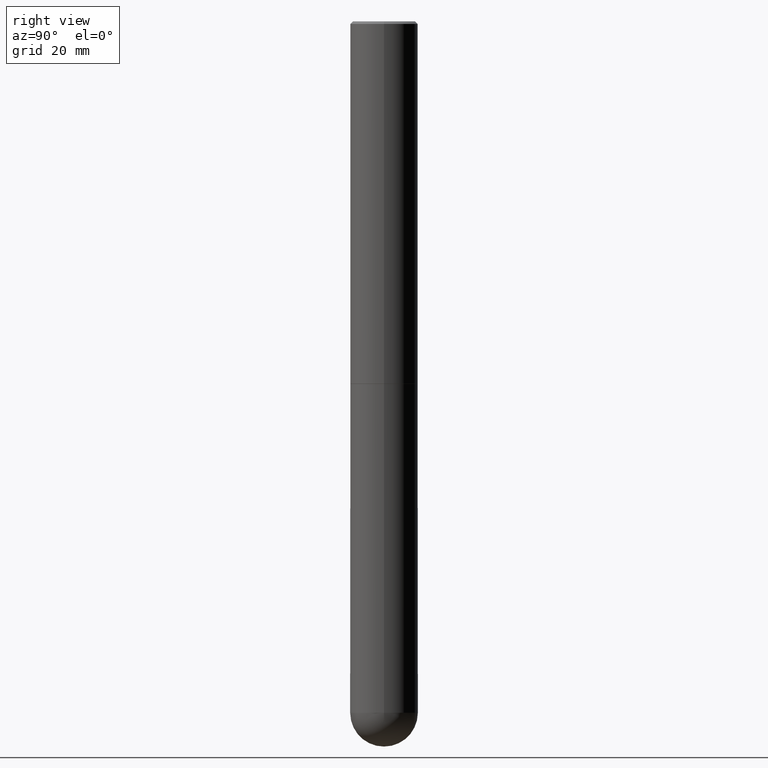
[diagram: clean part render]
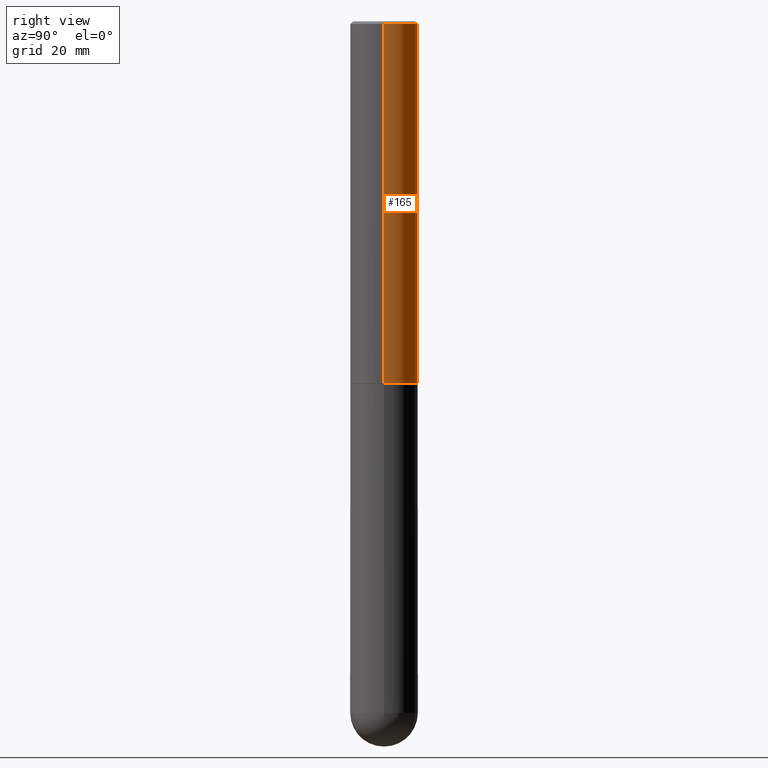
[diagram: same view with one face highlighted and labeled with its STEP entity id]
A machine part, right view. The second image highlights one B-rep face of the part: STEP entity #165.
In plain terms, the highlighted cylindrical surface (edge-blend (fillet) strip) has radius 7.0002 mm, axis along (-0, 0, 1).
Its self-contained STEP definition (entity closure, byte-faithful):
#9 = EDGE_CURVE ( 'NONE', #295, #367, #131, .T. ) ;
#15 = CIRCLE ( 'NONE', #119, 0.2756000000000000116 ) ;
#23 = VECTOR ( 'NONE', #358, 39.37007874015748143 ) ;
#38 = DIRECTION ( 'NONE',  ( -2.445468806185136877E-29, 3.491481338843145188E-15, 1.000000000000000000 ) ) ;
#65 = AXIS2_PLACEMENT_3D ( 'NONE', #101, #233, #357 ) ;
#67 = EDGE_CURVE ( 'NONE', #376, #295, #145, .T. ) ;
#69 = ORIENTED_EDGE ( 'NONE', *, *, #9, .T. ) ;
#72 = CARTESIAN_POINT ( 'NONE',  ( -0.2756000000000002337, 1.958255779754837773E-15, -1.355658510874253128E-29 ) ) ;
#100 = DIRECTION ( 'NONE',  ( -2.445468806185136597E-29, 3.491481338843145583E-15, 1.000000000000000000 ) ) ;
#101 = CARTESIAN_POINT ( 'NONE',  ( 7.218290275216666916E-29, -1.030580546786331359E-14, -2.951700000000000212 ) ) ;
#109 = ORIENTED_EDGE ( 'NONE', *, *, #198, .F. ) ;
#114 = CARTESIAN_POINT ( 'NONE',  ( 4.890937612370288923E-31, -6.982962677686312563E-17, -0.02000000000000006287 ) ) ;
#119 = AXIS2_PLACEMENT_3D ( 'NONE', #114, #276, #373 ) ;
#122 = FACE_OUTER_BOUND ( 'NONE', #349, .T. ) ;
#124 = CARTESIAN_POINT ( 'NONE',  ( -0.2756000000000000116, 1.854674887193472050E-15, -0.02000000000000006287 ) ) ;
#131 = LINE ( 'NONE', #72, #23 ) ;
#137 = AXIS2_PLACEMENT_3D ( 'NONE', #220, #100, #356 ) ;
#145 = CIRCLE ( 'NONE', #65, 0.2756000000000004557 ) ;
#165 = ADVANCED_FACE ( 'NONE', ( #122 ), #195, .T. ) ;
#181 = CARTESIAN_POINT ( 'NONE',  ( 0.2756000000000000116, -1.960582874962697406E-15, -0.02000000000000006287 ) ) ;
#195 = CYLINDRICAL_SURFACE ( 'NONE', #137, 0.2756000000000002337 ) ;
#198 = EDGE_CURVE ( 'NONE', #376, #311, #254, .T. ) ;
#220 = CARTESIAN_POINT ( 'NONE',  ( 0.000000000000000000, 0.000000000000000000, 0.000000000000000000 ) ) ;
#233 = DIRECTION ( 'NONE',  ( -2.445468806185136597E-29, 3.491481338843145583E-15, 1.000000000000000000 ) ) ;
#254 = LINE ( 'NONE', #321, #287 ) ;
#276 = DIRECTION ( 'NONE',  ( -2.445468806185136597E-29, 3.491481338843145583E-15, 1.000000000000000000 ) ) ;
#277 = CARTESIAN_POINT ( 'NONE',  ( 0.2756000000000004557, -1.223030998183365327E-14, -2.951700000000000212 ) ) ;
#285 = ORIENTED_EDGE ( 'NONE', *, *, #286, .F. ) ;
#286 = EDGE_CURVE ( 'NONE', #311, #367, #15, .T. ) ;
#287 = VECTOR ( 'NONE', #38, 39.37007874015748143 ) ;
#295 = VERTEX_POINT ( 'NONE', #310 ) ;
#310 = CARTESIAN_POINT ( 'NONE',  ( -0.2756000000000004002, -3.229561767565246331E-15, -2.951700000000000212 ) ) ;
#311 = VERTEX_POINT ( 'NONE', #181 ) ;
#321 = CARTESIAN_POINT ( 'NONE',  ( 0.2756000000000002337, -1.924504513970336926E-15, 1.343874319409361109E-29 ) ) ;
#344 = ORIENTED_EDGE ( 'NONE', *, *, #67, .T. ) ;
#349 = EDGE_LOOP ( 'NONE', ( #344, #69, #285, #109 ) ) ;
#356 = DIRECTION ( 'NONE',  ( 1.000000000000000000, -6.982962677686267499E-15, 4.876176775795935793E-29 ) ) ;
#357 = DIRECTION ( 'NONE',  ( 1.000000000000000000, -6.982962677686269077E-15, 0.000000000000000000 ) ) ;
#358 = DIRECTION ( 'NONE',  ( -2.445468806185136877E-29, 3.491481338843145188E-15, 1.000000000000000000 ) ) ;
#367 = VERTEX_POINT ( 'NONE', #124 ) ;
#373 = DIRECTION ( 'NONE',  ( 1.000000000000000000, -6.982962677686267499E-15, 0.000000000000000000 ) ) ;
#376 = VERTEX_POINT ( 'NONE', #277 ) ;